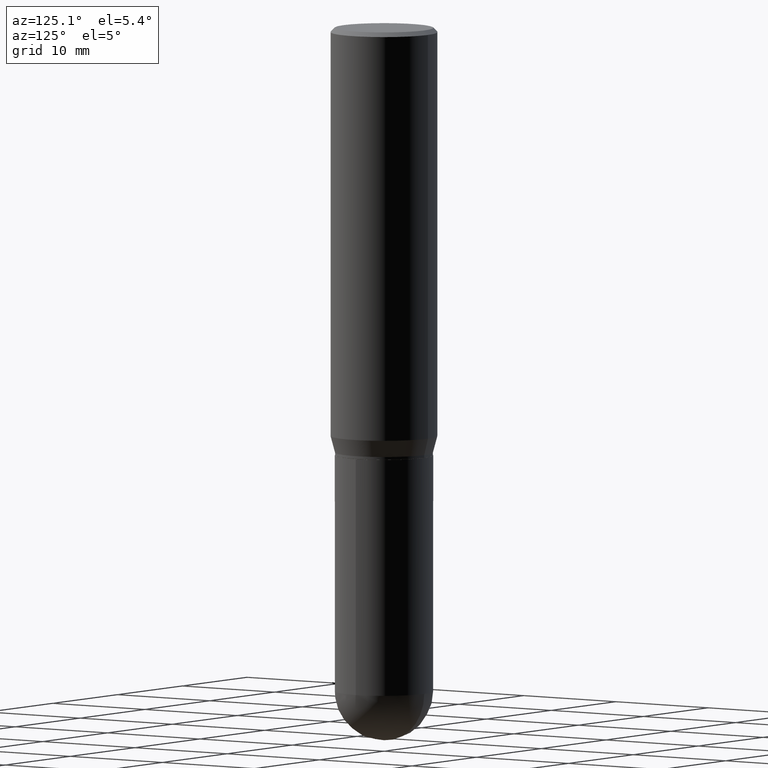
[diagram: clean part render]
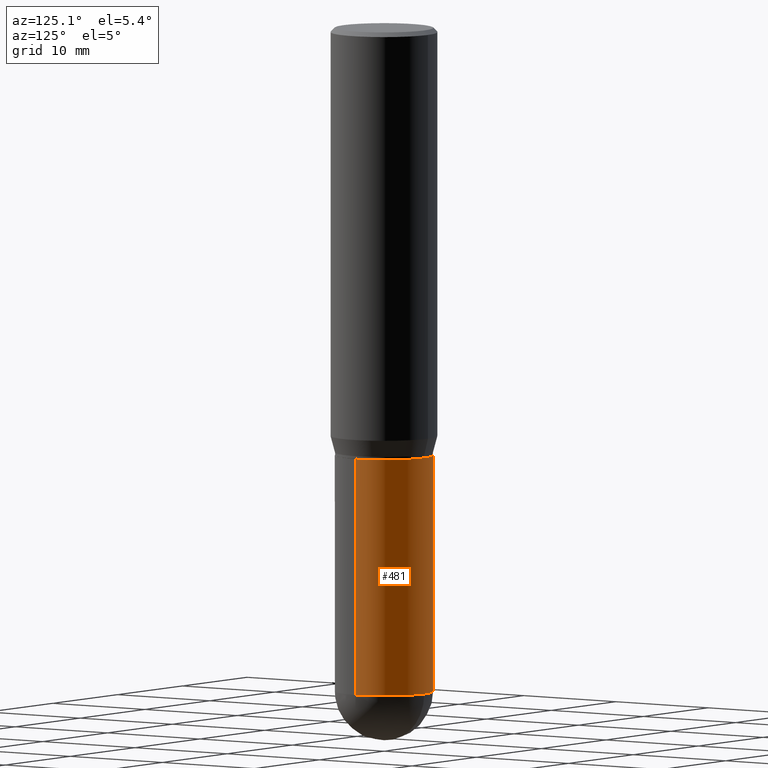
[diagram: same view with one face highlighted and labeled with its STEP entity id]
A machine part, auxiliary view. The second image highlights one B-rep face of the part: STEP entity #481.
In plain terms, the highlighted cylindrical surface (partial cylindrical patch) has radius 4.3663 mm, axis along (-0, 0, 1).
Its self-contained STEP definition (entity closure, byte-faithful):
#5 = CARTESIAN_POINT ( 'NONE',  ( 0.1719000000000000250, -1.200371284294269241E-15, 8.382147877593214480E-30 ) ) ;
#25 = VERTEX_POINT ( 'NONE', #124 ) ;
#27 = DIRECTION ( 'NONE',  ( -2.445468806185136597E-29, 3.491481338843145583E-15, 1.000000000000000000 ) ) ;
#44 = CARTESIAN_POINT ( 'NONE',  ( 0.000000000000000000, 0.000000000000000000, 0.000000000000000000 ) ) ;
#71 = CIRCLE ( 'NONE', #395, 0.1719000000000000250 ) ;
#76 = DIRECTION ( 'NONE',  ( 1.000000000000000000, -6.982962677686265922E-15, 4.876176775795935793E-29 ) ) ;
#81 = DIRECTION ( 'NONE',  ( -2.445468806185136877E-29, 3.491481338843145188E-15, 1.000000000000000000 ) ) ;
#87 = CARTESIAN_POINT ( 'NONE',  ( 0.1719000000000000250, -7.883241140906993293E-15, -2.328100000000000058 ) ) ;
#99 = VERTEX_POINT ( 'NONE', #87 ) ;
#107 = DIRECTION ( 'NONE',  ( 1.000000000000000000, -6.982962677686268288E-15, 0.000000000000000000 ) ) ;
#111 = VERTEX_POINT ( 'NONE', #211 ) ;
#124 = CARTESIAN_POINT ( 'NONE',  ( 1.200371284294326039E-15, 0.1718999999999918094, -2.328100000000000946 ) ) ;
#126 = EDGE_CURVE ( 'NONE', #111, #182, #435, .T. ) ;
#148 = DIRECTION ( 'NONE',  ( -2.445468806185136597E-29, 3.491481338843145583E-15, 1.000000000000000000 ) ) ;
#152 = DIRECTION ( 'NONE',  ( -2.445468806185136597E-29, 3.491481338843145583E-15, 1.000000000000000000 ) ) ;
#154 = EDGE_LOOP ( 'NONE', ( #179, #474, #169, #445, #338 ) ) ;
#163 = EDGE_CURVE ( 'NONE', #465, #182, #497, .T. ) ;
#169 = ORIENTED_EDGE ( 'NONE', *, *, #163, .F. ) ;
#179 = ORIENTED_EDGE ( 'NONE', *, *, #446, .T. ) ;
#182 = VERTEX_POINT ( 'NONE', #232 ) ;
#211 = CARTESIAN_POINT ( 'NONE',  ( -0.1719000000000000250, -5.461446893841112247E-15, -2.328100000000000058 ) ) ;
#232 = CARTESIAN_POINT ( 'NONE',  ( -0.1718999999999999695, -5.461446893841111458E-15, -1.500000000000000222 ) ) ;
#237 = CARTESIAN_POINT ( 'NONE',  ( 5.693295927679617284E-29, -8.128517704960729139E-15, -2.328100000000000058 ) ) ;
#242 = EDGE_CURVE ( 'NONE', #99, #25, #291, .T. ) ;
#250 = DIRECTION ( 'NONE',  ( 1.000000000000000000, -6.982962677686271444E-15, 0.000000000000000000 ) ) ;
#260 = DIRECTION ( 'NONE',  ( -2.445468806185136877E-29, 3.491481338843145188E-15, 1.000000000000000000 ) ) ;
#262 = CARTESIAN_POINT ( 'NONE',  ( -0.1719000000000000250, 1.221422962771612397E-15, -8.455649420148184581E-30 ) ) ;
#265 = CARTESIAN_POINT ( 'NONE',  ( 3.668203209277704895E-29, -5.237222008264718177E-15, -1.500000000000000222 ) ) ;
#270 = LINE ( 'NONE', #5, #470 ) ;
#273 = AXIS2_PLACEMENT_3D ( 'NONE', #265, #152, #107 ) ;
#291 = CIRCLE ( 'NONE', #328, 0.1719000000000000250 ) ;
#307 = DIRECTION ( 'NONE',  ( 1.000000000000000000, -6.982962677686271444E-15, 0.000000000000000000 ) ) ;
#328 = AXIS2_PLACEMENT_3D ( 'NONE', #237, #148, #307 ) ;
#338 = ORIENTED_EDGE ( 'NONE', *, *, #242, .T. ) ;
#354 = CARTESIAN_POINT ( 'NONE',  ( 0.1718999999999999695, -6.437593292558987418E-15, -1.500000000000000222 ) ) ;
#362 = CYLINDRICAL_SURFACE ( 'NONE', #443, 0.1719000000000000250 ) ;
#369 = CARTESIAN_POINT ( 'NONE',  ( 5.693295927679617284E-29, -8.128517704960729139E-15, -2.328100000000000058 ) ) ;
#395 = AXIS2_PLACEMENT_3D ( 'NONE', #369, #27, #250 ) ;
#400 = FACE_OUTER_BOUND ( 'NONE', #154, .T. ) ;
#403 = DIRECTION ( 'NONE',  ( -2.445468806185136597E-29, 3.491481338843145583E-15, 1.000000000000000000 ) ) ;
#406 = VECTOR ( 'NONE', #260, 39.37007874015748143 ) ;
#435 = LINE ( 'NONE', #262, #406 ) ;
#443 = AXIS2_PLACEMENT_3D ( 'NONE', #44, #403, #76 ) ;
#445 = ORIENTED_EDGE ( 'NONE', *, *, #471, .F. ) ;
#446 = EDGE_CURVE ( 'NONE', #25, #111, #71, .T. ) ;
#465 = VERTEX_POINT ( 'NONE', #354 ) ;
#470 = VECTOR ( 'NONE', #81, 39.37007874015748143 ) ;
#471 = EDGE_CURVE ( 'NONE', #99, #465, #270, .T. ) ;
#474 = ORIENTED_EDGE ( 'NONE', *, *, #126, .T. ) ;
#481 = ADVANCED_FACE ( 'NONE', ( #400 ), #362, .T. ) ;
#497 = CIRCLE ( 'NONE', #273, 0.1718999999999999695 ) ;